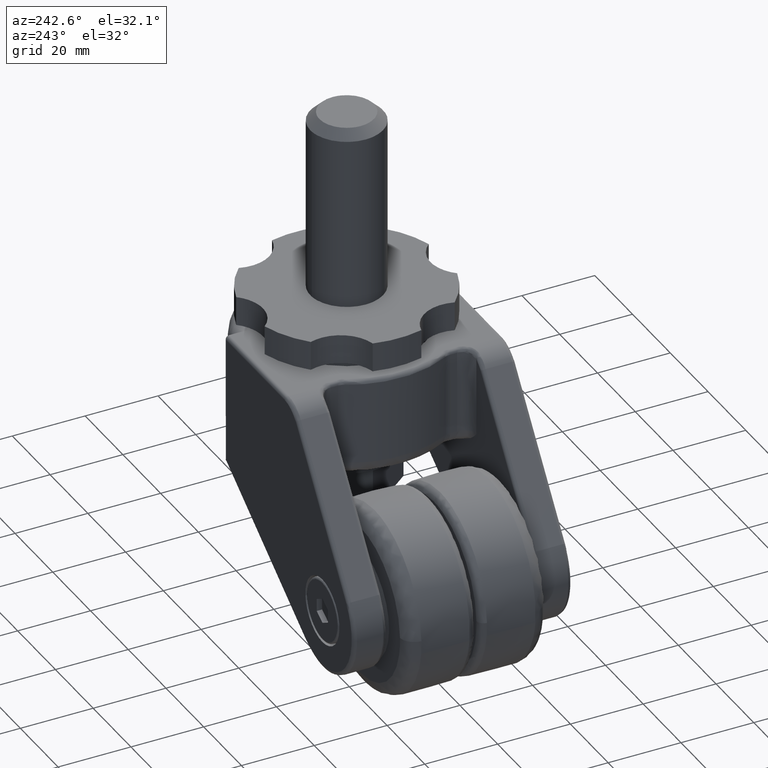
[diagram: clean part render]
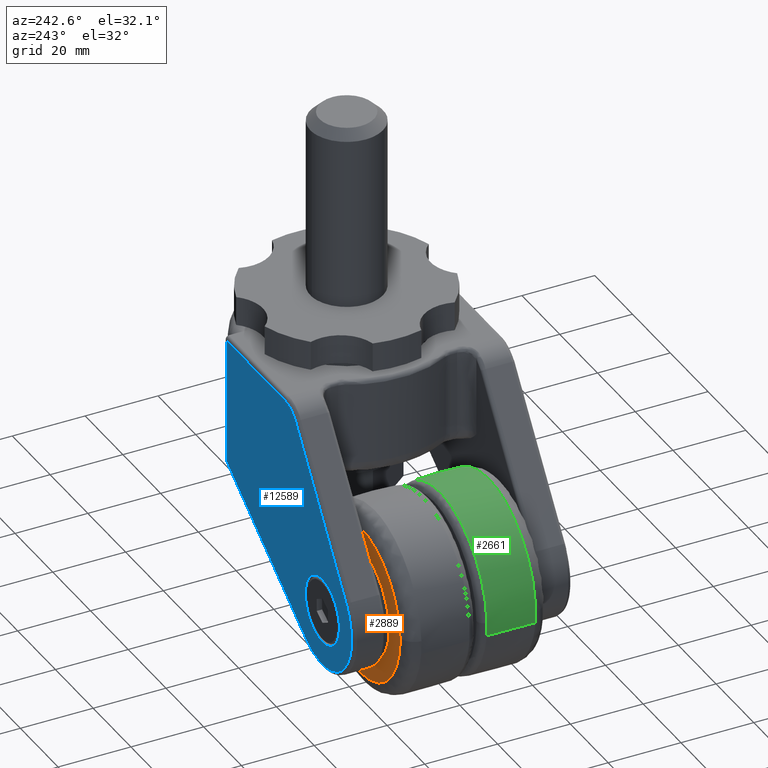
[diagram: same view with three faces highlighted in distinct colors, each labeled with its STEP entity id]
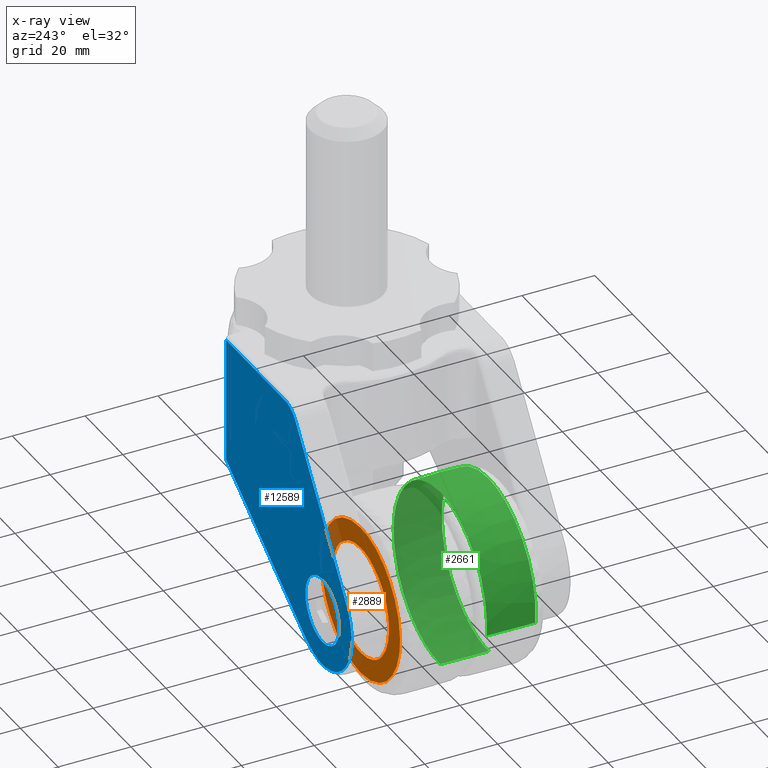
[diagram: x-ray of the same camera — body ghosted, the three highlighted faces saturated]
A machine part, auxiliary view with three faces highlighted in distinct colors.
The next image is the same camera in x-ray (body ghosted, the three faces saturated) — at least one of them is partly hidden behind the body in this view.
Their STEP definitions:

[orange] entity #2889 — the highlighted face is a freeform B-spline surface patch.
#857=CARTESIAN_POINT('',(-56.122230441919072,19.499999999999890,-67.191646478556635));
#858=VERTEX_POINT('',#857);
#864=CARTESIAN_POINT('',(-45.0,19.500000000000000,-41.914455000000103));
#865=VERTEX_POINT('',#864);
#866=CARTESIAN_POINT('',(-56.122230441919072,19.499999999999897,-67.191646478556635));
#867=CARTESIAN_POINT('',(-60.085544999999890,19.499999999999996,-62.866447608928652));
#868=CARTESIAN_POINT('',(-60.085544999999897,19.500000000000000,-57.0));
#869=CARTESIAN_POINT('',(-60.085544999999883,19.500000000000007,-41.914455000000096));
#870=CARTESIAN_POINT('',(-45.0,19.500000000000000,-41.914455000000103));
#878=(BOUNDED_CURVE()B_SPLINE_CURVE(2,(#866,#867,#868,#869,#870),.UNSPECIFIED.,.F.,.U.)B_SPLINE_CURVE_WITH_KNOTS((3,2,3),(0.631584790915624,0.750000000000000,1.0),.UNSPECIFIED.)CURVE()GEOMETRIC_REPRESENTATION_ITEM()RATIONAL_B_SPLINE_CURVE((0.853959780837918,0.861267953019237,1.0,0.707106781186547,1.0))REPRESENTATION_ITEM(''));
#879=EDGE_CURVE('',#858,#865,#878,.T.);
#881=CARTESIAN_POINT('',(-32.775388446659512,19.499999999997559,-48.160738700708009));
#882=VERTEX_POINT('',#881);
#883=CARTESIAN_POINT('',(-45.0,19.500000000000000,-41.914455000000103));
#884=CARTESIAN_POINT('',(-37.291894639154940,19.499999999999996,-41.914455000000103));
#885=CARTESIAN_POINT('',(-32.775388446659512,19.499999999997559,-48.160738700708009));
#893=(BOUNDED_CURVE()B_SPLINE_CURVE(2,(#883,#884,#885),.UNSPECIFIED.,.F.,.U.)B_SPLINE_CURVE_WITH_KNOTS((3,3),(0.0,0.149095912123742),.UNSPECIFIED.)CURVE()GEOMETRIC_REPRESENTATION_ITEM()RATIONAL_B_SPLINE_CURVE((1.0,0.825323273544599,0.858995233950456))REPRESENTATION_ITEM(''));
#894=EDGE_CURVE('',#865,#882,#893,.T.);
#940=CARTESIAN_POINT('',(-45.0,19.500000000000000,-72.085544999999897));
#941=VERTEX_POINT('',#940);
#942=CARTESIAN_POINT('',(-32.775388446659512,19.499999999997559,-48.160738700708009));
#943=CARTESIAN_POINT('',(-29.914455000000096,19.499999999999993,-52.117381555855019));
#944=CARTESIAN_POINT('',(-29.914455000000100,19.500000000000000,-57.0));
#945=CARTESIAN_POINT('',(-29.914455000000096,19.500000000000007,-72.085544999999897));
#946=CARTESIAN_POINT('',(-45.0,19.500000000000000,-72.085544999999897));
#954=(BOUNDED_CURVE()B_SPLINE_CURVE(2,(#942,#943,#944,#945,#946),.UNSPECIFIED.,.F.,.U.)B_SPLINE_CURVE_WITH_KNOTS((3,2,3),(0.149095912123742,0.250000000000000,0.500000000000000),.UNSPECIFIED.)CURVE()GEOMETRIC_REPRESENTATION_ITEM()RATIONAL_B_SPLINE_CURVE((0.858995233950456,0.881783507641949,1.0,0.707106781186547,1.0))REPRESENTATION_ITEM(''));
#955=EDGE_CURVE('',#882,#941,#954,.T.);
#957=CARTESIAN_POINT('',(-45.0,19.500000000000000,-72.085544999999897));
#958=CARTESIAN_POINT('',(-51.637798664224455,19.500000000000004,-72.085544999999911));
#959=CARTESIAN_POINT('',(-56.122230441919072,19.499999999999897,-67.191646478556635));
#967=(BOUNDED_CURVE()B_SPLINE_CURVE(2,(#957,#958,#959),.UNSPECIFIED.,.F.,.U.)B_SPLINE_CURVE_WITH_KNOTS((3,3),(0.500000000000000,0.631584790915624),.UNSPECIFIED.)CURVE()GEOMETRIC_REPRESENTATION_ITEM()RATIONAL_B_SPLINE_CURVE((1.0,0.845838828167311,0.853959780837918))REPRESENTATION_ITEM(''));
#968=EDGE_CURVE('',#941,#858,#967,.T.);
#2349=CARTESIAN_POINT('',(-65.860102788594062,19.500000000000000,-56.213219886485597));
#2350=VERTEX_POINT('',#2349);
#2364=CARTESIAN_POINT('',(-45.0,19.500000000000000,-77.874934999999795));
#2365=VERTEX_POINT('',#2364);
#2366=CARTESIAN_POINT('',(-45.0,19.500000000000000,-77.874934999999795));
#2367=CARTESIAN_POINT('',(-65.874934999999795,19.500000000000007,-77.874934999999795));
#2368=CARTESIAN_POINT('',(-65.874934999999795,19.500000000000000,-57.0));
#2369=CARTESIAN_POINT('',(-65.874934999999780,19.499999999999996,-56.606470136343823));
#2370=CARTESIAN_POINT('',(-65.860102788594062,19.499999999999996,-56.213219886485604));
#2378=(BOUNDED_CURVE()B_SPLINE_CURVE(2,(#2366,#2367,#2368,#2369,#2370),.UNSPECIFIED.,.F.,.U.)B_SPLINE_CURVE_WITH_KNOTS((3,2,3),(0.500000000000000,0.750000000000000,0.756613471419040),.UNSPECIFIED.)CURVE()GEOMETRIC_REPRESENTATION_ITEM()RATIONAL_B_SPLINE_CURVE((1.0,0.707106781186547,1.0,0.992251836274186,0.984913610623178))REPRESENTATION_ITEM(''));
#2379=EDGE_CURVE('',#2365,#2350,#2378,.T.);
#2381=CARTESIAN_POINT('',(-24.129043660772950,19.500000000000000,-56.592455129833930));
#2382=VERTEX_POINT('',#2381);
#2383=CARTESIAN_POINT('',(-24.129043660772950,19.500000000000004,-56.592455129833930));
#2384=CARTESIAN_POINT('',(-24.125065000000202,19.500000000000007,-56.796208143947801));
#2385=CARTESIAN_POINT('',(-24.125065000000198,19.500000000000000,-57.0));
#2386=CARTESIAN_POINT('',(-24.125065000000191,19.500000000000007,-77.874934999999795));
#2387=CARTESIAN_POINT('',(-45.0,19.500000000000000,-77.874934999999795));
#2395=(BOUNDED_CURVE()B_SPLINE_CURVE(2,(#2383,#2384,#2385,#2386,#2387),.UNSPECIFIED.,.F.,.U.)B_SPLINE_CURVE_WITH_KNOTS((3,2,3),(0.246562331019217,0.250000000000000,0.500000000000000),.UNSPECIFIED.)CURVE()GEOMETRIC_REPRESENTATION_ITEM()RATIONAL_B_SPLINE_CURVE((0.992055801673189,0.995972520268013,1.0,0.707106781186547,1.0))REPRESENTATION_ITEM(''));
#2396=EDGE_CURVE('',#2382,#2365,#2395,.T.);
#2453=CARTESIAN_POINT('',(-45.0,19.500000000000000,-36.125065000000212));
#2454=VERTEX_POINT('',#2453);
#2455=CARTESIAN_POINT('',(-45.0,19.500000000000000,-36.125065000000212));
#2456=CARTESIAN_POINT('',(-24.528708140088405,19.499999999999996,-36.125065000000212));
#2457=CARTESIAN_POINT('',(-24.129043660772950,19.500000000000004,-56.592455129833930));
#2465=(BOUNDED_CURVE()B_SPLINE_CURVE(2,(#2455,#2456,#2457),.UNSPECIFIED.,.F.,.U.)B_SPLINE_CURVE_WITH_KNOTS((3,3),(0.0,0.246562331019217),.UNSPECIFIED.)CURVE()GEOMETRIC_REPRESENTATION_ITEM()RATIONAL_B_SPLINE_CURVE((1.0,0.711134260918534,0.992055801673189))REPRESENTATION_ITEM(''));
#2466=EDGE_CURVE('',#2454,#2382,#2465,.T.);
#2468=CARTESIAN_POINT('',(-65.860102788594062,19.500000000000000,-56.213219886485604));
#2469=CARTESIAN_POINT('',(-65.102438218775291,19.500000000000007,-36.125065000000205));
#2470=CARTESIAN_POINT('',(-45.0,19.500000000000000,-36.125065000000212));
#2478=(BOUNDED_CURVE()B_SPLINE_CURVE(2,(#2468,#2469,#2470),.UNSPECIFIED.,.F.,.U.)B_SPLINE_CURVE_WITH_KNOTS((3,3),(0.756613471419039,1.0),.UNSPECIFIED.)CURVE()GEOMETRIC_REPRESENTATION_ITEM()RATIONAL_B_SPLINE_CURVE((0.984913610623180,0.714854944912360,1.0))REPRESENTATION_ITEM(''));
#2479=EDGE_CURVE('',#2350,#2454,#2478,.T.);
#2872=CARTESIAN_POINT('',(-67.957366908500120,19.500000000000000,-79.960337398319254));
#2873=CARTESIAN_POINT('',(-67.957366908500120,19.500000000000000,-34.039658122405648));
#2874=CARTESIAN_POINT('',(-22.043967380411921,19.500000000000000,-79.960337398319254));
#2875=CARTESIAN_POINT('',(-22.043967380411921,19.500000000000000,-34.039658122405648));
#2876=B_SPLINE_SURFACE_WITH_KNOTS('',1,1,((#2872,#2874),(#2873,#2875)),.UNSPECIFIED.,.F.,.F.,.U.,(2,2),(2,2),(0.0,45.920679275913614),(0.0,45.913399528088213),.UNSPECIFIED.);
#2877=ORIENTED_EDGE('',*,*,#2466,.T.);
#2878=ORIENTED_EDGE('',*,*,#2396,.T.);
#2879=ORIENTED_EDGE('',*,*,#2379,.T.);
#2880=ORIENTED_EDGE('',*,*,#2479,.T.);
#2881=EDGE_LOOP('',(#2877,#2878,#2879,#2880));
#2882=FACE_OUTER_BOUND('',#2881,.T.);
#2883=ORIENTED_EDGE('',*,*,#968,.F.);
#2884=ORIENTED_EDGE('',*,*,#955,.F.);
#2885=ORIENTED_EDGE('',*,*,#894,.F.);
#2886=ORIENTED_EDGE('',*,*,#879,.F.);
#2887=EDGE_LOOP('',(#2883,#2884,#2885,#2886));
#2888=FACE_BOUND('',#2887,.T.);
#2889=ADVANCED_FACE('',(#2882,#2888),#2876,.T.);

[blue] entity #12589 — the highlighted face is a freeform B-spline surface patch.
#6537=CARTESIAN_POINT('',(-36.016786814215983,30.0,-57.549436856022751));
#6538=VERTEX_POINT('',#6537);
#6544=CARTESIAN_POINT('',(-45.0,30.0,-66.0));
#6545=VERTEX_POINT('',#6544);
#6546=CARTESIAN_POINT('',(-45.0,30.0,-66.0));
#6547=CARTESIAN_POINT('',(-36.533645398243522,29.999999999999996,-66.000000000000014));
#6548=CARTESIAN_POINT('',(-36.016786814215990,30.000000000000004,-57.549436856022744));
#6556=(BOUNDED_CURVE()B_SPLINE_CURVE(2,(#6546,#6547,#6548),.UNSPECIFIED.,.F.,.U.)B_SPLINE_CURVE_WITH_KNOTS((3,3),(0.500000000000000,0.739332962233938),.UNSPECIFIED.)CURVE()GEOMETRIC_REPRESENTATION_ITEM()RATIONAL_B_SPLINE_CURVE((1.0,0.719603993292574,0.976072041655991))REPRESENTATION_ITEM(''));
#6557=EDGE_CURVE('',#6545,#6538,#6556,.T.);
#6559=CARTESIAN_POINT('',(-53.937085737251891,30.0,-55.937691887911633));
#6560=VERTEX_POINT('',#6559);
#6561=CARTESIAN_POINT('',(-53.937085737251898,30.000000000000004,-55.937691887911633));
#6562=CARTESIAN_POINT('',(-54.0,29.999999999999996,-56.466982922953392));
#6563=CARTESIAN_POINT('',(-54.0,30.0,-57.0));
#6564=CARTESIAN_POINT('',(-54.0,29.999999999999993,-66.0));
#6565=CARTESIAN_POINT('',(-45.0,30.0,-66.0));
#6573=(BOUNDED_CURVE()B_SPLINE_CURVE(2,(#6561,#6562,#6563,#6564,#6565),.UNSPECIFIED.,.F.,.U.)B_SPLINE_CURVE_WITH_KNOTS((3,2,3),(0.229562473508930,0.250000000000000,0.500000000000000),.UNSPECIFIED.)CURVE()GEOMETRIC_REPRESENTATION_ITEM()RATIONAL_B_SPLINE_CURVE((0.956026754174725,0.976055948325781,1.0,0.707106781186547,1.0))REPRESENTATION_ITEM(''));
#6574=EDGE_CURVE('',#6560,#6545,#6573,.T.);
#6618=CARTESIAN_POINT('',(-45.0,30.0,-48.0));
#6619=VERTEX_POINT('',#6618);
#6620=CARTESIAN_POINT('',(-45.0,30.0,-48.0));
#6621=CARTESIAN_POINT('',(-52.993570733242493,30.0,-48.0));
#6622=CARTESIAN_POINT('',(-53.937085737251898,30.000000000000004,-55.937691887911633));
#6630=(BOUNDED_CURVE()B_SPLINE_CURVE(2,(#6620,#6621,#6622),.UNSPECIFIED.,.F.,.U.)B_SPLINE_CURVE_WITH_KNOTS((3,3),(0.0,0.229562473508930),.UNSPECIFIED.)CURVE()GEOMETRIC_REPRESENTATION_ITEM()RATIONAL_B_SPLINE_CURVE((1.0,0.731050832860767,0.956026754174725))REPRESENTATION_ITEM(''));
#6631=EDGE_CURVE('',#6619,#6560,#6630,.T.);
#6633=CARTESIAN_POINT('',(-36.016786814215983,30.000000000000004,-57.549436856022751));
#6634=CARTESIAN_POINT('',(-36.0,30.0,-57.274974869896923));
#6635=CARTESIAN_POINT('',(-36.0,30.0,-57.0));
#6636=CARTESIAN_POINT('',(-36.0,29.999999999999993,-48.0));
#6637=CARTESIAN_POINT('',(-45.0,30.0,-48.0));
#6645=(BOUNDED_CURVE()B_SPLINE_CURVE(2,(#6633,#6634,#6635,#6636,#6637),.UNSPECIFIED.,.F.,.U.)B_SPLINE_CURVE_WITH_KNOTS((3,2,3),(0.739332962233938,0.750000000000000,1.0),.UNSPECIFIED.)CURVE()GEOMETRIC_REPRESENTATION_ITEM()RATIONAL_B_SPLINE_CURVE((0.976072041655991,0.987502787893974,1.0,0.707106781186547,1.0))REPRESENTATION_ITEM(''));
#6646=EDGE_CURVE('',#6538,#6619,#6645,.T.);
#12085=CARTESIAN_POINT('',(-57.614143389932487,30.0,-47.992592685005100));
#12086=VERTEX_POINT('',#12085);
#12100=CARTESIAN_POINT('',(-36.477372864544250,30.0,-69.946616517921996));
#12101=VERTEX_POINT('',#12100);
#12102=CARTESIAN_POINT('',(-36.477372864544250,30.0,-69.946616517921996));
#12103=CARTESIAN_POINT('',(-47.234076580749786,30.0,-77.027645975969534));
#12104=CARTESIAN_POINT('',(-56.166015085293303,30.0,-67.750354037384966));
#12105=CARTESIAN_POINT('',(-65.097953589836820,30.0,-58.473062098800348));
#12106=CARTESIAN_POINT('',(-57.614143389932487,30.0,-47.992592685005100));
#12114=(BOUNDED_CURVE()B_SPLINE_CURVE(2,(#12102,#12103,#12104,#12105,#12106),.UNSPECIFIED.,.F.,.U.)B_SPLINE_CURVE_WITH_KNOTS((3,2,3),(0.0,0.500000000000000,1.0),.UNSPECIFIED.)CURVE()GEOMETRIC_REPRESENTATION_ITEM()RATIONAL_B_SPLINE_CURVE((1.0,0.769159588453369,1.0,0.769159588453369,1.0))REPRESENTATION_ITEM(''));
#12115=EDGE_CURVE('',#12101,#12086,#12114,.T.);
#12164=CARTESIAN_POINT('',(6.0,30.0,-41.984188448680101));
#12165=VERTEX_POINT('',#12164);
#12186=CARTESIAN_POINT('',(6.0,30.0,-41.984188448680101));
#12187=CARTESIAN_POINT('',(-36.477372864544250,30.0,-69.946616517921996));
#12188=QUASI_UNIFORM_CURVE('',1,(#12186,#12187),.UNSPECIFIED.,.F.,.U.);
#12189=EDGE_CURVE('',#12165,#12101,#12188,.T.);
#12210=CARTESIAN_POINT('',(-30.793271918034101,30.0,-10.432138631937780));
#12211=VERTEX_POINT('',#12210);
#12225=CARTESIAN_POINT('',(-57.614143389932487,30.0,-47.992592685005100));
#12226=CARTESIAN_POINT('',(-30.793271918034101,30.0,-10.432138631937780));
#12227=QUASI_UNIFORM_CURVE('',1,(#12225,#12226),.UNSPECIFIED.,.F.,.U.);
#12228=EDGE_CURVE('',#12086,#12211,#12227,.T.);
#12262=CARTESIAN_POINT('',(6.0,30.0,-7.500000000000000));
#12263=VERTEX_POINT('',#12262);
#12264=CARTESIAN_POINT('',(6.0,30.0,-7.500000000000000));
#12265=CARTESIAN_POINT('',(6.0,30.0,-41.984188448680101));
#12266=QUASI_UNIFORM_CURVE('',1,(#12264,#12265),.UNSPECIFIED.,.F.,.U.);
#12267=EDGE_CURVE('',#12263,#12165,#12266,.T.);
#12304=CARTESIAN_POINT('',(-25.096562000000102,30.0,-7.500000000000000));
#12305=VERTEX_POINT('',#12304);
#12319=CARTESIAN_POINT('',(-30.793271918034101,30.0,-10.432138631937780));
#12320=CARTESIAN_POINT('',(-28.699513654355677,29.999999999999996,-7.500000000000000));
#12321=CARTESIAN_POINT('',(-25.096562000000102,30.0,-7.500000000000001));
#12329=(BOUNDED_CURVE()B_SPLINE_CURVE(2,(#12319,#12320,#12321),.UNSPECIFIED.,.F.,.U.)CURVE()GEOMETRIC_REPRESENTATION_ITEM()QUASI_UNIFORM_CURVE()RATIONAL_B_SPLINE_CURVE((1.0,0.889135268837177,1.0))REPRESENTATION_ITEM(''));
#12330=EDGE_CURVE('',#12211,#12305,#12329,.T.);
#12426=CARTESIAN_POINT('',(-25.096562000000102,30.0,-7.500000000000000));
#12427=CARTESIAN_POINT('',(6.0,30.0,-7.500000000000000));
#12428=QUASI_UNIFORM_CURVE('',1,(#12426,#12427),.UNSPECIFIED.,.F.,.U.);
#12429=EDGE_CURVE('',#12305,#12263,#12428,.T.);
#12570=CARTESIAN_POINT('',(-63.815767474042943,30.0,-75.740565772746876));
#12571=CARTESIAN_POINT('',(9.321395617248815,30.0,-75.740565772746876));
#12572=CARTESIAN_POINT('',(-63.815767474042943,30.0,-4.253542583235203));
#12573=CARTESIAN_POINT('',(9.321395617248815,30.0,-4.253542583235203));
#12574=B_SPLINE_SURFACE_WITH_KNOTS('',1,1,((#12570,#12572),(#12571,#12573)),.UNSPECIFIED.,.F.,.F.,.U.,(2,2),(2,2),(0.0,73.137163091291754),(0.0,71.487023189511675),.UNSPECIFIED.);
#12575=ORIENTED_EDGE('',*,*,#12189,.T.);
#12576=ORIENTED_EDGE('',*,*,#12115,.T.);
#12577=ORIENTED_EDGE('',*,*,#12228,.T.);
#12578=ORIENTED_EDGE('',*,*,#12330,.T.);
#12579=ORIENTED_EDGE('',*,*,#12429,.T.);
#12580=ORIENTED_EDGE('',*,*,#12267,.T.);
#12581=EDGE_LOOP('',(#12575,#12576,#12577,#12578,#12579,#12580));
#12582=FACE_OUTER_BOUND('',#12581,.T.);
#12583=ORIENTED_EDGE('',*,*,#6557,.T.);
#12584=ORIENTED_EDGE('',*,*,#6646,.T.);
#12585=ORIENTED_EDGE('',*,*,#6631,.T.);
#12586=ORIENTED_EDGE('',*,*,#6574,.T.);
#12587=EDGE_LOOP('',(#12583,#12584,#12585,#12586));
#12588=FACE_BOUND('',#12587,.T.);
#12589=ADVANCED_FACE('',(#12582,#12588),#12574,.F.);

[green] entity #2661 — the highlighted face is a freeform B-spline surface patch.
#1666=CARTESIAN_POINT('',(-20.178276032220111,-15.681819013419339,-55.438349495831567));
#1667=VERTEX_POINT('',#1666);
#1681=CARTESIAN_POINT('',(-45.0,-15.681817604149099,-32.129198974647451));
#1682=VERTEX_POINT('',#1681);
#1683=CARTESIAN_POINT('',(-45.0,-15.681817604149099,-32.129198974647451));
#1684=CARTESIAN_POINT('',(-21.644763206945132,-15.681817604149098,-32.129198974647444));
#1685=CARTESIAN_POINT('',(-20.178276032220111,-15.681819013419348,-55.438349495831574));
#1693=(BOUNDED_CURVE()B_SPLINE_CURVE(2,(#1683,#1684,#1685),.UNSPECIFIED.,.F.,.U.)B_SPLINE_CURVE_WITH_KNOTS((3,3),(0.0,0.239031911186152),.UNSPECIFIED.)CURVE()GEOMETRIC_REPRESENTATION_ITEM()RATIONAL_B_SPLINE_CURVE((1.0,0.719956696534227,0.975427681406911))REPRESENTATION_ITEM(''));
#1694=EDGE_CURVE('',#1682,#1667,#1693,.T.);
#1696=CARTESIAN_POINT('',(-69.704456124379817,-15.681817604144980,-59.871687873234023));
#1697=VERTEX_POINT('',#1696);
#1698=CARTESIAN_POINT('',(-69.704456124379803,-15.681817604144983,-59.871687873234023));
#1699=CARTESIAN_POINT('',(-69.870801025352549,-15.681817604149105,-58.440661769817495));
#1700=CARTESIAN_POINT('',(-69.870801025352549,-15.681817604149099,-57.0));
#1701=CARTESIAN_POINT('',(-69.870801025352549,-15.681817604149105,-32.129198974647451));
#1702=CARTESIAN_POINT('',(-45.0,-15.681817604149099,-32.129198974647451));
#1710=(BOUNDED_CURVE()B_SPLINE_CURVE(2,(#1698,#1699,#1700,#1701,#1702),.UNSPECIFIED.,.F.,.U.)B_SPLINE_CURVE_WITH_KNOTS((3,2,3),(0.729999999998704,0.750000000000000,1.0),.UNSPECIFIED.)CURVE()GEOMETRIC_REPRESENTATION_ITEM()RATIONAL_B_SPLINE_CURVE((0.956886118188108,0.976568542493405,1.0,0.707106781186547,1.0))REPRESENTATION_ITEM(''));
#1711=EDGE_CURVE('',#1697,#1682,#1710,.T.);
#1713=CARTESIAN_POINT('',(-45.0,-15.681820632538910,-81.870800887555959));
#1714=VERTEX_POINT('',#1713);
#1728=CARTESIAN_POINT('',(-36.214356898459300,-15.681820526427989,-80.267341992689381));
#1729=VERTEX_POINT('',#1728);
#1730=CARTESIAN_POINT('',(-36.214356898459300,-15.681820526427988,-80.267341992689381));
#1731=CARTESIAN_POINT('',(-40.460855612516362,-15.681820632538907,-81.870800887555959));
#1732=CARTESIAN_POINT('',(-45.0,-15.681820632538910,-81.870800887555959));
#1740=(BOUNDED_CURVE()B_SPLINE_CURVE(2,(#1730,#1731,#1732),.UNSPECIFIED.,.F.,.U.)B_SPLINE_CURVE_WITH_KNOTS((3,3),(0.440008548583205,0.500000000000000),.UNSPECIFIED.)CURVE()GEOMETRIC_REPRESENTATION_ITEM()RATIONAL_B_SPLINE_CURVE((0.893162970361518,0.929715642772977,1.0))REPRESENTATION_ITEM(''));
#1741=EDGE_CURVE('',#1729,#1714,#1740,.T.);
#1792=CARTESIAN_POINT('',(-20.178276032220111,-15.681819013419348,-55.438349495831574));
#1793=CARTESIAN_POINT('',(-20.129198974647448,-15.681819070758513,-56.218403555713600));
#1794=CARTESIAN_POINT('',(-20.129198974647451,-15.681819118344000,-56.999999931101712));
#1795=CARTESIAN_POINT('',(-20.129198974647448,-15.681820165135841,-74.193659363557060));
#1796=CARTESIAN_POINT('',(-36.214356898459300,-15.681820526427986,-80.267341992689381));
#1804=(BOUNDED_CURVE()B_SPLINE_CURVE(2,(#1792,#1793,#1794,#1795,#1796),.UNSPECIFIED.,.F.,.U.)B_SPLINE_CURVE_WITH_KNOTS((3,2,3),(0.239031911186152,0.250000000000000,0.440008548583205),.UNSPECIFIED.)CURVE()GEOMETRIC_REPRESENTATION_ITEM()RATIONAL_B_SPLINE_CURVE((0.975427681406911,0.987150084652320,1.0,0.777391138413571,0.893162970361518))REPRESENTATION_ITEM(''));
#1805=EDGE_CURVE('',#1667,#1729,#1804,.T.);
#1840=CARTESIAN_POINT('',(-20.237314069581970,-2.378047729213570,-56.516461754099893));
#1841=VERTEX_POINT('',#1840);
#1842=CARTESIAN_POINT('',(-45.0,-2.378046645556147,-81.767406646147521));
#1843=VERTEX_POINT('',#1842);
#1844=CARTESIAN_POINT('',(-20.237314069581974,-2.378047729213570,-56.516461754099893));
#1845=CARTESIAN_POINT('',(-20.232593488134700,-2.378047716976518,-56.758207868055315));
#1846=CARTESIAN_POINT('',(-20.232593488134700,-2.378047706617886,-57.000000067141109));
#1847=CARTESIAN_POINT('',(-20.232593488134704,-2.378046645556146,-81.767406646147521));
#1848=CARTESIAN_POINT('',(-45.0,-2.378046645556147,-81.767406646147521));
#1856=(BOUNDED_CURVE()B_SPLINE_CURVE(2,(#1844,#1845,#1846,#1847,#1848),.UNSPECIFIED.,.F.,.U.)B_SPLINE_CURVE_WITH_KNOTS((3,2,3),(0.246562330555855,0.250000000000000,0.500000000000000),.UNSPECIFIED.)CURVE()GEOMETRIC_REPRESENTATION_ITEM()RATIONAL_B_SPLINE_CURVE((0.992055800617323,0.995972519725150,1.0,0.707106781186547,1.0))REPRESENTATION_ITEM(''));
#1857=EDGE_CURVE('',#1841,#1843,#1856,.T.);
#1859=CARTESIAN_POINT('',(-69.601753411927604,-2.378048751622464,-59.859749535780452));
#1860=VERTEX_POINT('',#1859);
#1874=CARTESIAN_POINT('',(-69.749808591913990,-2.378048767634597,-56.066511924301068));
#1875=VERTEX_POINT('',#1874);
#1876=CARTESIAN_POINT('',(-69.601753411927604,-2.378048751622464,-59.859749535780452));
#1877=CARTESIAN_POINT('',(-69.767406511865303,-2.378048767679625,-58.434672556902314));
#1878=CARTESIAN_POINT('',(-69.767406511865303,-2.378048767679625,-57.0));
#1879=CARTESIAN_POINT('',(-69.767406511865303,-2.378048767679625,-56.533090086013118));
#1880=CARTESIAN_POINT('',(-69.749808591913990,-2.378048767634597,-56.066511924301061));
#1888=(BOUNDED_CURVE()B_SPLINE_CURVE(2,(#1876,#1877,#1878,#1879,#1880),.UNSPECIFIED.,.F.,.U.)B_SPLINE_CURVE_WITH_KNOTS((3,2,3),(0.729999999998661,0.750000000000000,0.756613471417425),.UNSPECIFIED.)CURVE()GEOMETRIC_REPRESENTATION_ITEM()RATIONAL_B_SPLINE_CURVE((0.956886118188024,0.976568542493355,1.0,0.992251836276079,0.984913610626763))REPRESENTATION_ITEM(''));
#1889=EDGE_CURVE('',#1860,#1875,#1888,.T.);
#1979=CARTESIAN_POINT('',(-45.0,-2.378048767679625,-32.232593488134697));
#1980=VERTEX_POINT('',#1979);
#1981=CARTESIAN_POINT('',(-45.0,-2.378048767679625,-32.232593488134697));
#1982=CARTESIAN_POINT('',(-20.711502527907854,-2.378048767679625,-32.232593488134704));
#1983=CARTESIAN_POINT('',(-20.237314069581970,-2.378047729213570,-56.516461754099893));
#1991=(BOUNDED_CURVE()B_SPLINE_CURVE(2,(#1981,#1982,#1983),.UNSPECIFIED.,.F.,.U.)B_SPLINE_CURVE_WITH_KNOTS((3,3),(0.0,0.246562330555855),.UNSPECIFIED.)CURVE()GEOMETRIC_REPRESENTATION_ITEM()RATIONAL_B_SPLINE_CURVE((1.0,0.711134261461397,0.992055800617323))REPRESENTATION_ITEM(''));
#1992=EDGE_CURVE('',#1980,#1841,#1991,.T.);
#2024=CARTESIAN_POINT('',(-69.749808591913990,-2.378048767634597,-56.066511924301068));
#2025=CARTESIAN_POINT('',(-68.850865128379752,-2.378048767679625,-32.232593488134704));
#2026=CARTESIAN_POINT('',(-45.0,-2.378048767679625,-32.232593488134697));
#2034=(BOUNDED_CURVE()B_SPLINE_CURVE(2,(#2024,#2025,#2026),.UNSPECIFIED.,.F.,.U.)B_SPLINE_CURVE_WITH_KNOTS((3,3),(0.756613471417424,1.0),.UNSPECIFIED.)CURVE()GEOMETRIC_REPRESENTATION_ITEM()RATIONAL_B_SPLINE_CURVE((0.984913610626766,0.714854944910467,1.0))REPRESENTATION_ITEM(''));
#2035=EDGE_CURVE('',#1875,#1980,#2034,.T.);
#2590=CARTESIAN_POINT('',(-69.559765121930539,-1.715042119177361,-59.854868131681314));
#2591=CARTESIAN_POINT('',(-70.042221057905991,-9.027035825926319,-59.910949615755726));
#2592=CARTESIAN_POINT('',(-69.672693772275053,-16.345694537009290,-59.867995146676037));
#2593=CARTESIAN_POINT('',(-69.725135690096550,-1.715042119177365,-58.432223678452196));
#2594=CARTESIAN_POINT('',(-70.210840191840092,-9.027035825926323,-58.460358508402052));
#2595=CARTESIAN_POINT('',(-69.838824733505774,-16.345694537009297,-58.438809209144218));
#2596=CARTESIAN_POINT('',(-69.725135690096522,-1.715042119177370,-57.000000000000007));
#2597=CARTESIAN_POINT('',(-70.210840191840092,-9.027035825926326,-57.0));
#2598=CARTESIAN_POINT('',(-69.838824733505746,-16.345694537009294,-57.0));
#2599=CARTESIAN_POINT('',(-69.725135690096522,-1.715042119177369,-32.274864309903464));
#2600=CARTESIAN_POINT('',(-70.210840191840077,-9.027035825926326,-31.789159808159923));
#2601=CARTESIAN_POINT('',(-69.838824733505746,-16.345694537009290,-32.161175266494261));
#2602=CARTESIAN_POINT('',(-44.999999999999993,-1.715042119177370,-32.274864309903471));
#2603=CARTESIAN_POINT('',(-44.999999999999993,-9.027035825926326,-31.789159808159912));
#2604=CARTESIAN_POINT('',(-44.999999999999993,-16.345694537009294,-32.161175266494247));
#2605=CARTESIAN_POINT('',(-20.274864309903453,-1.715042119177369,-32.274864309903464));
#2606=CARTESIAN_POINT('',(-19.789159808159908,-9.027035825926326,-31.789159808159923));
#2607=CARTESIAN_POINT('',(-20.161175266494244,-16.345694537009290,-32.161175266494261));
#2608=CARTESIAN_POINT('',(-20.274864309903464,-1.715042119177370,-57.000000000000007));
#2609=CARTESIAN_POINT('',(-19.789159808159916,-9.027035825926326,-57.0));
#2610=CARTESIAN_POINT('',(-20.161175266494244,-16.345694537009294,-57.0));
#2611=CARTESIAN_POINT('',(-20.274864309903453,-1.715042119177369,-81.725135690096522));
#2612=CARTESIAN_POINT('',(-19.789159808159908,-9.027035825926326,-82.210840191840092));
#2613=CARTESIAN_POINT('',(-20.161175266494258,-16.345694537009290,-81.838824733505760));
#2614=CARTESIAN_POINT('',(-44.999999999999993,-1.715042119177370,-81.725135690096522));
#2615=CARTESIAN_POINT('',(-44.999999999999993,-9.027035825926326,-82.210840191840077));
#2616=CARTESIAN_POINT('',(-44.999999999999993,-16.345694537009294,-81.838824733505732));
#2624=(BOUNDED_SURFACE()B_SPLINE_SURFACE(2,2,((#2590,#2593,#2596,#2599,#2602,#2605,#2608,#2611,#2614),(#2591,#2594,#2597,#2600,#2603,#2606,#2609,#2612,#2615),(#2592,#2595,#2598,#2601,#2604,#2607,#2610,#2613,#2616)),.UNSPECIFIED.,.F.,.F.,.U.)B_SPLINE_SURFACE_WITH_KNOTS((3,3),(3,2,2,2,3),(0.0,14.643643688923779),(0.0,3.313206748422741,44.728299743568677,86.143392738714610,127.558485733860490),.UNSPECIFIED.)GEOMETRIC_REPRESENTATION_ITEM()RATIONAL_B_SPLINE_SURFACE(((0.862145405770501,0.879879082071565,0.900990600638696,0.637096563496963,0.900990600638696,0.637096563496963,0.900990600638696,0.637096563496963,0.900990600638696),(0.860471825583411,0.878171077610909,0.899241614901614,0.635859843822073,0.899241614901614,0.635859843822073,0.899241614901614,0.635859843822073,0.899241614901614),(0.861753086896258,0.879478693495997,0.900580605276220,0.636806652995900,0.900580605276220,0.636806652995900,0.900580605276220,0.636806652995900,0.900580605276220)))REPRESENTATION_ITEM('')SURFACE());
#2625=ORIENTED_EDGE('',*,*,#1711,.T.);
#2626=ORIENTED_EDGE('',*,*,#1694,.T.);
#2627=ORIENTED_EDGE('',*,*,#1805,.T.);
#2628=ORIENTED_EDGE('',*,*,#1741,.T.);
#2629=CARTESIAN_POINT('',(-45.0,-2.378046645556146,-81.767406646147506));
#2630=CARTESIAN_POINT('',(-45.0,-9.027178583752002,-82.173597716167720));
#2631=CARTESIAN_POINT('',(-45.0,-15.681820632538914,-81.870800887555987));
#2639=(BOUNDED_CURVE()B_SPLINE_CURVE(2,(#2629,#2630,#2631),.UNSPECIFIED.,.F.,.U.)B_SPLINE_CURVE_WITH_KNOTS((3,3),(0.454225692626414,0.534108550973284),.UNSPECIFIED.)CURVE()GEOMETRIC_REPRESENTATION_ITEM()RATIONAL_B_SPLINE_CURVE((0.900838114886213,0.899375481881473,0.900465357299799))REPRESENTATION_ITEM(''));
#2640=EDGE_CURVE('',#1843,#1714,#2639,.T.);
#2641=ORIENTED_EDGE('',*,*,#2640,.F.);
#2642=ORIENTED_EDGE('',*,*,#1857,.F.);
#2643=ORIENTED_EDGE('',*,*,#1992,.F.);
#2644=ORIENTED_EDGE('',*,*,#2035,.F.);
#2645=ORIENTED_EDGE('',*,*,#1889,.F.);
#2646=CARTESIAN_POINT('',(-69.601753411927604,-2.378048751622463,-59.859749535780452));
#2647=CARTESIAN_POINT('',(-70.005227461726562,-9.027178123411723,-59.906650043432272));
#2648=CARTESIAN_POINT('',(-69.704456124379817,-15.681817604144985,-59.871687873234023));
#2656=(BOUNDED_CURVE()B_SPLINE_CURVE(2,(#2646,#2647,#2648),.UNSPECIFIED.,.F.,.U.)B_SPLINE_CURVE_WITH_KNOTS((3,3),(0.454225705298193,0.534108532774691),.UNSPECIFIED.)CURVE()GEOMETRIC_REPRESENTATION_ITEM()RATIONAL_B_SPLINE_CURVE((0.861999486427633,0.860599914137694,0.861642799836598))REPRESENTATION_ITEM(''));
#2657=EDGE_CURVE('',#1860,#1697,#2656,.T.);
#2658=ORIENTED_EDGE('',*,*,#2657,.T.);
#2659=EDGE_LOOP('',(#2625,#2626,#2627,#2628,#2641,#2642,#2643,#2644,#2645,#2658));
#2660=FACE_OUTER_BOUND('',#2659,.T.);
#2661=ADVANCED_FACE('',(#2660),#2624,.T.);